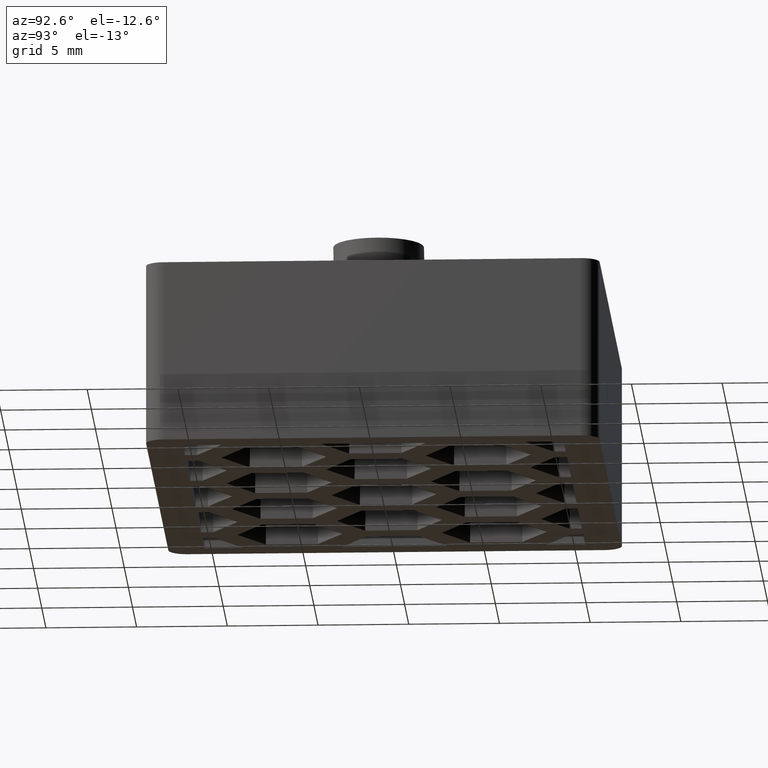
[diagram: clean part render]
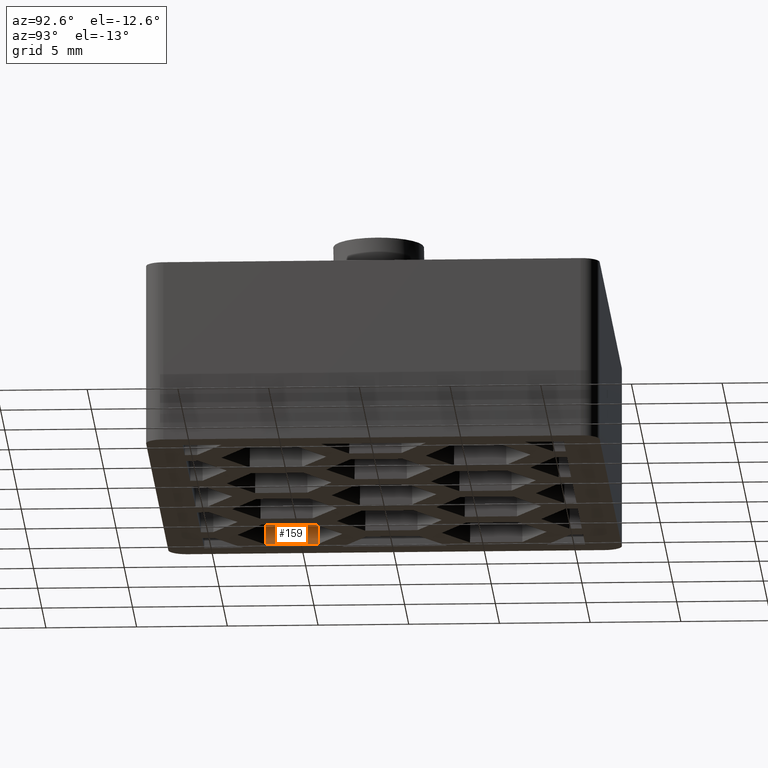
[diagram: same view with one face highlighted and labeled with its STEP entity id]
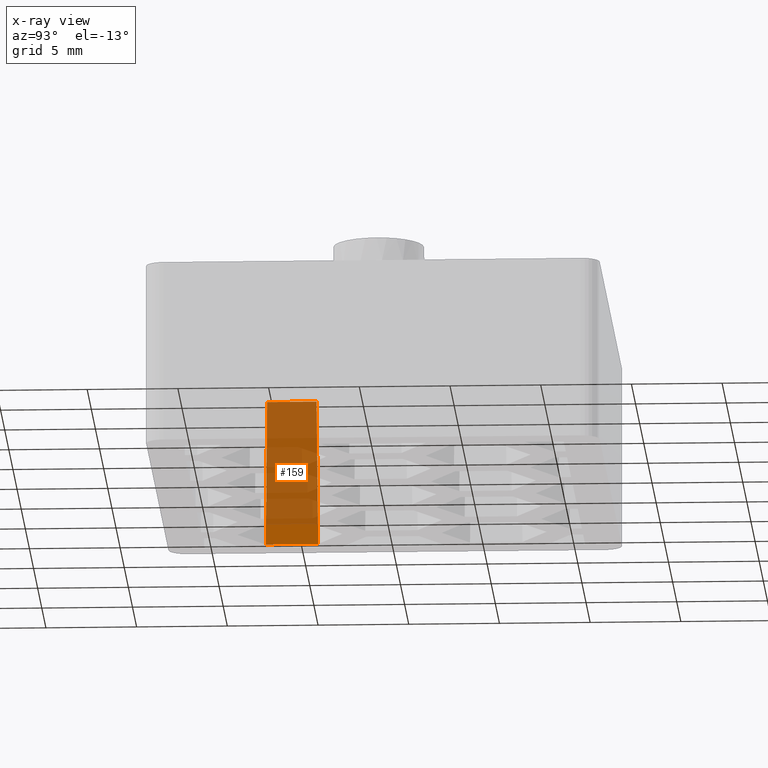
[diagram: x-ray of the same camera — body ghosted, the highlighted face saturated]
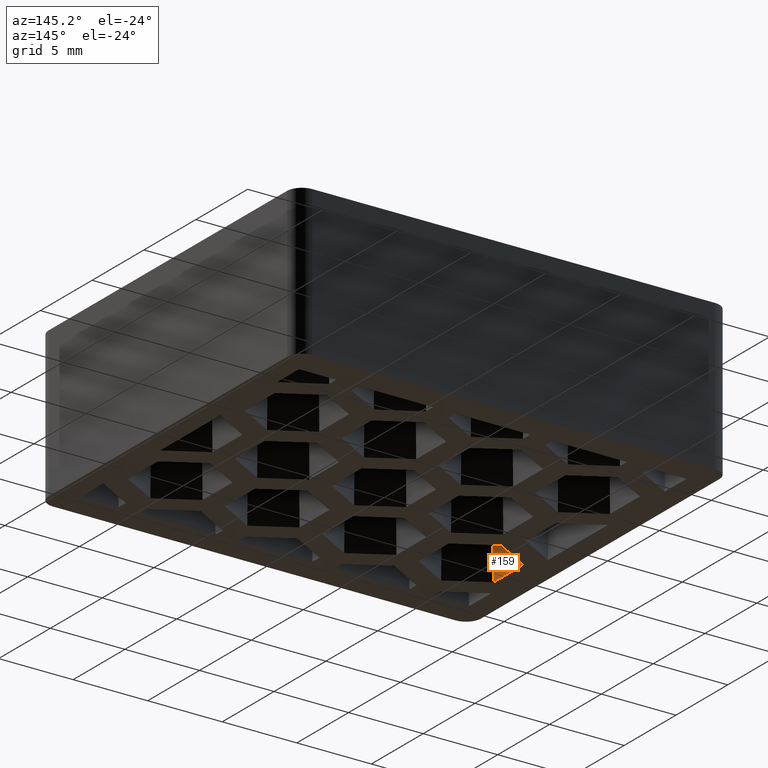
[diagram: same view with one face highlighted and labeled with its STEP entity id]
A machine part, auxiliary view. The second image highlights one B-rep face of the part: STEP entity #159.
The next image is the same camera in x-ray: the body ghosted, the highlighted face saturated — about 86% of this face is hidden behind the body in this view.
A second angle (auxiliary view) of the same face is appended — the face is thin or edge-on in the first view.
In plain terms, the highlighted planar face has unit normal (-0.9998, 0, 0.0175).
Its self-contained STEP definition (entity closure, byte-faithful):
#159 = ADVANCED_FACE( '', ( #466 ), #467, .F. );
#466 = FACE_OUTER_BOUND( '', #878, .T. );
#467 = PLANE( '', #879 );
#878 = EDGE_LOOP( '', ( #1835, #1836, #1837, #1838 ) );
#879 = AXIS2_PLACEMENT_3D( '', #1839, #1840, #1841 );
#1835 = ORIENTED_EDGE( '', *, *, #2673, .T. );
#1836 = ORIENTED_EDGE( '', *, *, #2924, .F. );
#1837 = ORIENTED_EDGE( '', *, *, #2925, .F. );
#1838 = ORIENTED_EDGE( '', *, *, #2922, .T. );
#1839 = CARTESIAN_POINT( '', ( -12.2500000000000, -1.44337567297406, -6.85051555290339E-015 ) );
#1840 = DIRECTION( '', ( -0.999847695156391, 5.65713130046804E-017, 0.0174524064372835 ) );
#1841 = DIRECTION( '', ( -0.0174524064372835, -6.12209920171588E-017, -0.999847695156391 ) );
#2673 = EDGE_CURVE( '', #3215, #3213, #3216, .T. );
#2922 = EDGE_CURVE( '', #3638, #3215, #3639, .T. );
#2924 = EDGE_CURVE( '', #3641, #3213, #3642, .T. );
#2925 = EDGE_CURVE( '', #3638, #3641, #3643, .T. );
#3213 = VERTEX_POINT( '', #4069 );
#3215 = VERTEX_POINT( '', #4072 );
#3216 = LINE( '', #4073, #4074 );
#3638 = VERTEX_POINT( '', #4728 );
#3639 = LINE( '', #4729, #4730 );
#3641 = VERTEX_POINT( '', #4733 );
#3642 = LINE( '', #4734, #4735 );
#3643 = LINE( '', #4736, #4737 );
#4069 = CARTESIAN_POINT( '', ( -12.2500000000000, -4.18578945162479, -6.68259668599611E-015 ) );
#4072 = CARTESIAN_POINT( '', ( -12.2500000000000, -7.07254079757292, -6.50583998398844E-015 ) );
#4073 = CARTESIAN_POINT( '', ( -12.2500000000000, -1.44337567297406, -6.85051555290339E-015 ) );
#4074 = VECTOR( '', #5177, 1000.00000000000 );
#4728 = CARTESIAN_POINT( '', ( -12.1103594805743, -6.99191930609269, 7.99999999999999 ) );
#4729 = CARTESIAN_POINT( '', ( -12.2482488054766, -7.07152974494345, 0.100325867051769 ) );
#4730 = VECTOR( '', #5458, 1000.00000000000 );
#4733 = CARTESIAN_POINT( '', ( -12.1103594805743, -4.26641094310502, 7.99999999999999 ) );
#4734 = CARTESIAN_POINT( '', ( -12.2504822129847, -4.18551104582826, -0.0276259633910783 ) );
#4735 = VECTOR( '', #5460, 1000.00000000000 );
#4736 = CARTESIAN_POINT( '', ( -12.1103594805743, -1.44337567297406, 7.99999999999999 ) );
#4737 = VECTOR( '', #5461, 1000.00000000000 );
#5177 = DIRECTION( '', ( 5.55111512312578E-017, 1.00000000000000, -6.12303176911189E-017 ) );
#5458 = DIRECTION( '', ( -0.0174515205435363, -0.0100756400835790, -0.999796942337605 ) );
#5460 = DIRECTION( '', ( -0.0174515205435363, 0.0100756400835789, -0.999796942337605 ) );
#5461 = DIRECTION( '', ( 5.55111512312578E-017, 1.00000000000000, -6.12303176911189E-017 ) );